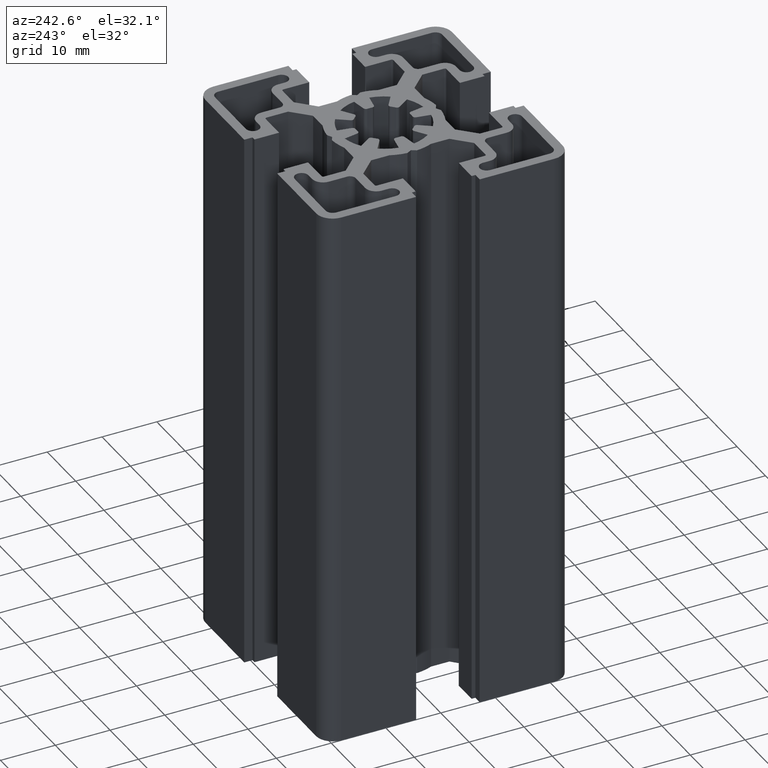
[diagram: clean part render]
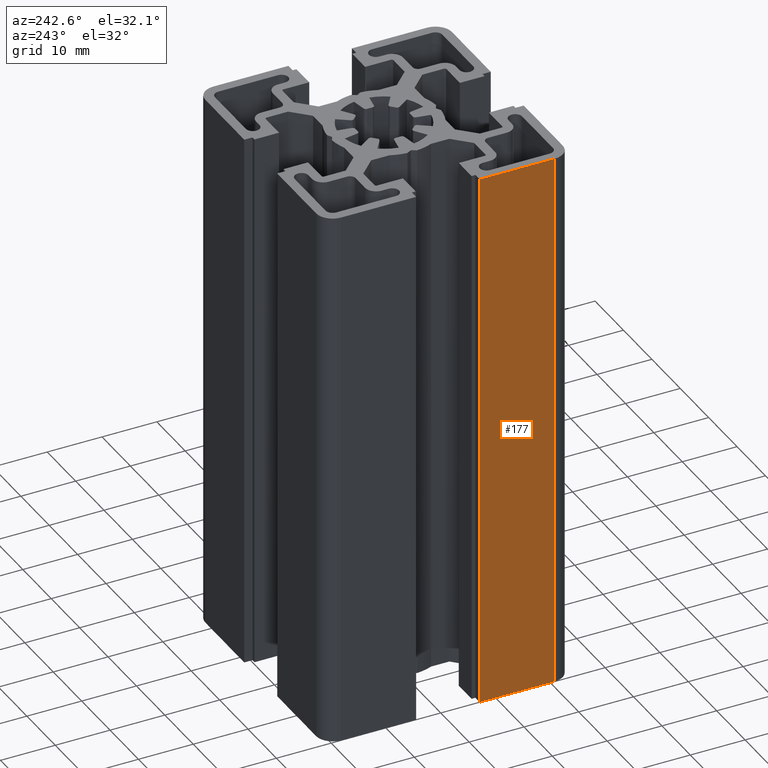
[diagram: same view with one face highlighted and labeled with its STEP entity id]
A machine part, auxiliary view. The second image highlights one B-rep face of the part: STEP entity #177.
In plain terms, the highlighted planar face has unit normal (1, 0, -0).
Its self-contained STEP definition (entity closure, byte-faithful):
#110 = ORIENTED_EDGE ( 'NONE', *, *, #175, .F. ) ;
#166 = EDGE_CURVE ( 'NONE', #736, #1733, #2181, .T. ) ;
#170 = ORIENTED_EDGE ( 'NONE', *, *, #1755, .T. ) ;
#174 = ORIENTED_EDGE ( 'NONE', *, *, #807, .F. ) ;
#175 = EDGE_CURVE ( 'NONE', #806, #1809, #2217, .T. ) ;
#176 = EDGE_LOOP ( 'NONE', ( #170, #110, #174, #179 ) ) ;
#177 = ADVANCED_FACE ( 'NONE', ( #2172 ), #2221, .F. ) ;
#179 = ORIENTED_EDGE ( 'NONE', *, *, #166, .T. ) ;
#736 = VERTEX_POINT ( 'NONE', #2933 ) ;
#806 = VERTEX_POINT ( 'NONE', #3066 ) ;
#807 = EDGE_CURVE ( 'NONE', #736, #806, #2998, .T. ) ;
#1733 = VERTEX_POINT ( 'NONE', #4531 ) ;
#1755 = EDGE_CURVE ( 'NONE', #1733, #1809, #4592, .T. ) ;
#1809 = VERTEX_POINT ( 'NONE', #4679 ) ;
#2137 = DIRECTION ( 'NONE',  ( 1.000000000000000000, 0.0000000000000000000, -0.0000000000000000000 ) ) ;
#2170 = CARTESIAN_POINT ( 'NONE',  ( -22.50000000000000000, -5.799999000000002300, 100.0000000000000000 ) ) ;
#2172 = FACE_OUTER_BOUND ( 'NONE', #176, .T. ) ;
#2178 = DIRECTION ( 'NONE',  ( -0.0000000000000000000, -0.0000000000000000000, -1.000000000000000000 ) ) ;
#2179 = VECTOR ( 'NONE', #2178, 1000.000000000000000 ) ;
#2180 = CARTESIAN_POINT ( 'NONE',  ( -22.50000000000000000, -5.799999000000002300, 100.0000000000000000 ) ) ;
#2181 = LINE ( 'NONE', #2180, #2179 ) ;
#2209 = DIRECTION ( 'NONE',  ( -0.0000000000000000000, 0.0000000000000000000, -1.000000000000000000 ) ) ;
#2213 = AXIS2_PLACEMENT_3D ( 'NONE', #2170, #2137, #2209 ) ;
#2214 = DIRECTION ( 'NONE',  ( -0.0000000000000000000, -0.0000000000000000000, -1.000000000000000000 ) ) ;
#2215 = VECTOR ( 'NONE', #2214, 1000.000000000000000 ) ;
#2216 = CARTESIAN_POINT ( 'NONE',  ( -22.50000000000000000, -19.50000000000000000, 100.0000000000000000 ) ) ;
#2217 = LINE ( 'NONE', #2216, #2215 ) ;
#2221 = PLANE ( 'NONE',  #2213 ) ;
#2933 = CARTESIAN_POINT ( 'NONE',  ( -22.50000000000000000, -5.799999000000002300, 100.0000000000000000 ) ) ;
#2998 = LINE ( 'NONE', #3065, #3064 ) ;
#3063 = DIRECTION ( 'NONE',  ( 0.0000000000000000000, -1.000000000000000000, 0.0000000000000000000 ) ) ;
#3064 = VECTOR ( 'NONE', #3063, 1000.000000000000000 ) ;
#3065 = CARTESIAN_POINT ( 'NONE',  ( -22.50000000000000000, -5.799999000000002300, 100.0000000000000000 ) ) ;
#3066 = CARTESIAN_POINT ( 'NONE',  ( -22.50000000000000000, -19.50000000000000000, 100.0000000000000000 ) ) ;
#4531 = CARTESIAN_POINT ( 'NONE',  ( -22.50000000000000000, -5.799999000000002300, 0.0000000000000000000 ) ) ;
#4589 = DIRECTION ( 'NONE',  ( 0.0000000000000000000, -1.000000000000000000, 0.0000000000000000000 ) ) ;
#4590 = VECTOR ( 'NONE', #4589, 1000.000000000000000 ) ;
#4591 = CARTESIAN_POINT ( 'NONE',  ( -22.50000000000000000, -5.799999000000002300, 0.0000000000000000000 ) ) ;
#4592 = LINE ( 'NONE', #4591, #4590 ) ;
#4679 = CARTESIAN_POINT ( 'NONE',  ( -22.50000000000000000, -19.50000000000000000, 0.0000000000000000000 ) ) ;